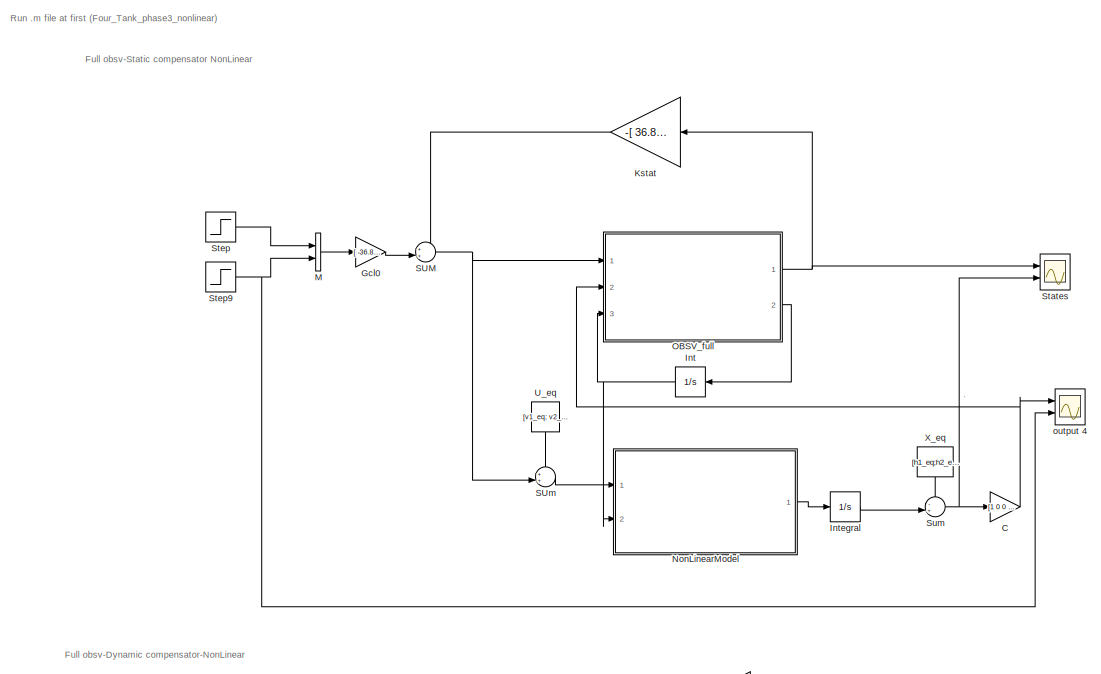
[diagram: root canvas - part 1/3, top right region]
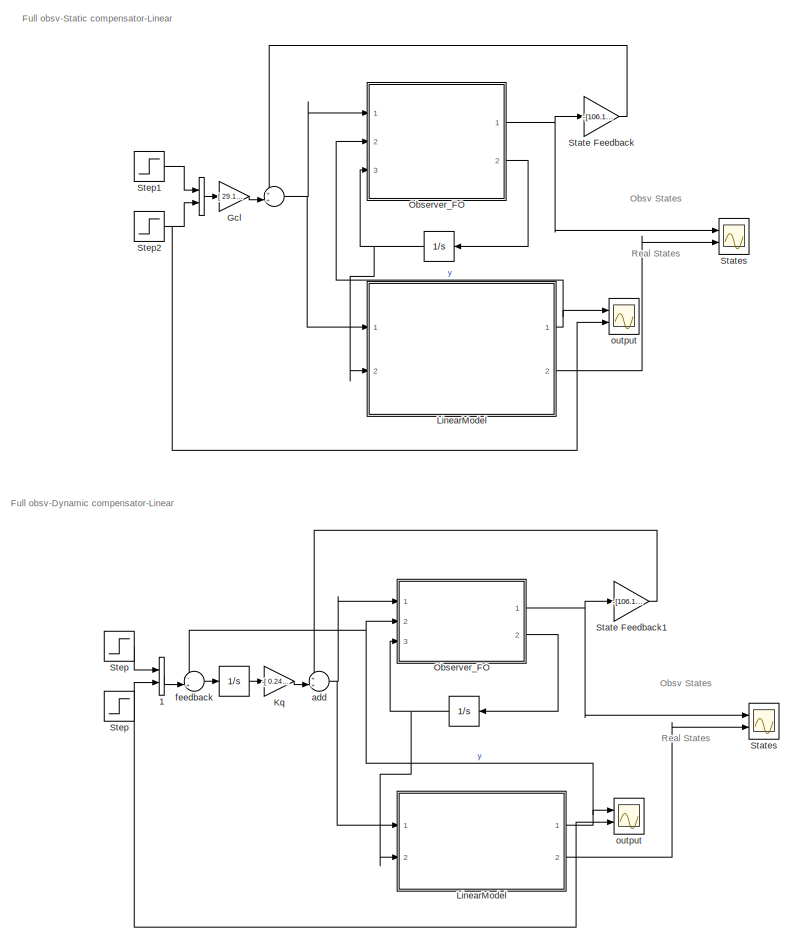
[diagram: root canvas - part 2/3, left side, full height]
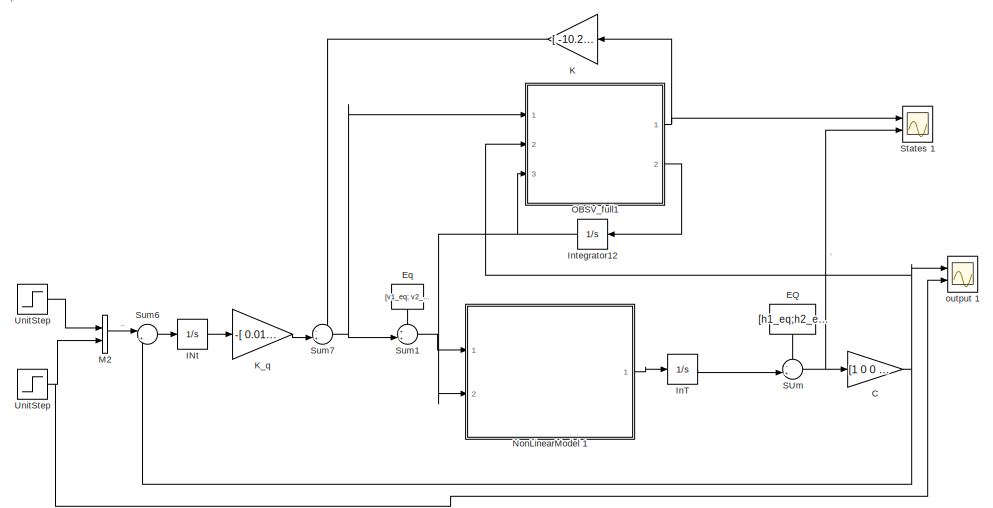
[diagram: root canvas - part 3/3, bottom right region]
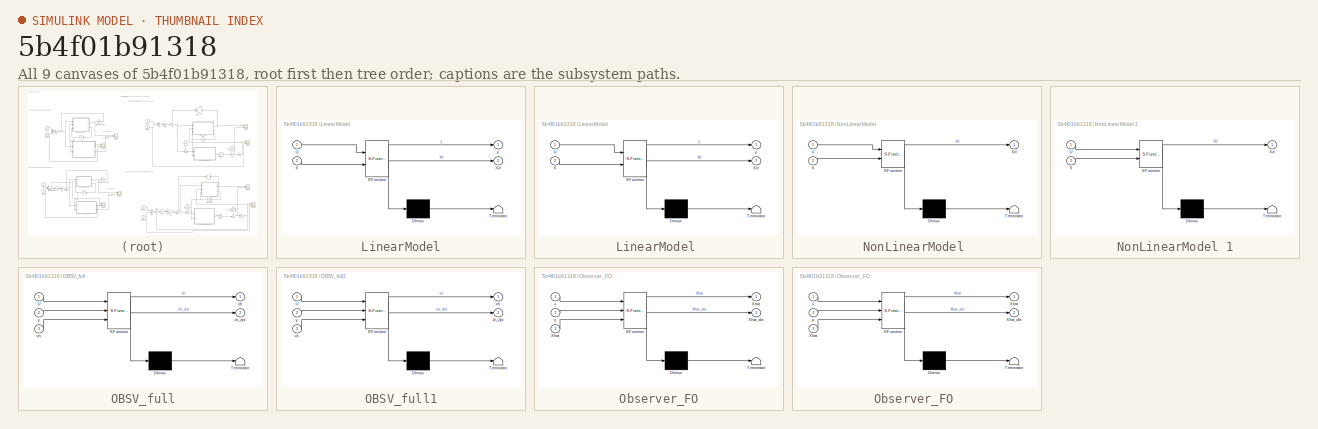
[diagram: thumbnail index - all 9 canvases of the model, root first then tree order]
MODEL slx_5b4f01b91318
KIND model
CONFIG AbsTol = auto
CONFIG EnableMultiTasking = off
CONFIG FixedStep = auto
CONFIG MaxStep = auto
CONFIG MinStep = auto
CONFIG RelTol = 1e-3
CONFIG SampleTimeConstraint = Unconstrained
CONFIG Solver = VariableStepAuto
CONFIG SolverName = VariableStepAuto
CONFIG StartTime = 0.0
CONFIG StopTime = 1500
BLOCK [Integrator]   
  InitialCondition = [0;0;0;0;0;0]
  NameLocation = top
  Ports = [1, 1]
BLOCK [Concatenate]    
  Ports = [2, 1]
BLOCK [Sum]      
  Inputs = ++|
  Ports = [2, 1]
BLOCK [Integrator]            
  Ports = [1, 1]
BLOCK [Integrator]                       
  InitialCondition = [0;0;0;0;0;0]
  NameLocation = top
  Ports = [1, 1]
BLOCK [Concatenate]    1
  Ports = [2, 1]
BLOCK [Gain]  C 
  Gain = [1 0 0 0;\n   0 1 0 0]
  Multiplication = Matrix(K*u)
BLOCK [Scope]  States 
  Floating = off
  NumInputPorts = 2
  Ports = [2]
  ScopeSpecificationString = Simulink.scopes.TimeScopeBlockCfg('CurrentConfiguration', extmgr.ConfigurationSet(extmgr.Configuration('Core','General UI',true,'FigureColor',[1 1 1]),extmgr.Configuration('Core','Source UI',true),extmgr.Configuration('Sources','WiredSimulink',true,'DataLoggingVariableName','ScopeData9','DataLoggingSaveFormat','StructureWithTime','DataLoggingDecimation','1','DataLoggingDecimateData',true),extmgr.C...<+4542ch>
BLOCK [Scope]  States 1
  Floating = off
  NumInputPorts = 2
  Ports = [2]
  ScopeSpecificationString = Simulink.scopes.TimeScopeBlockCfg('CurrentConfiguration', extmgr.ConfigurationSet(extmgr.Configuration('Core','General UI',true,'FigureColor',[1 1 1]),extmgr.Configuration('Core','Source UI',true),extmgr.Configuration('Sources','WiredSimulink',true,'DataLoggingVariableName','ScopeData7','DataLoggingSaveFormat','StructureWithTime','DataLoggingDecimation','1','DataLoggingDecimateData',true),extmgr.C...<+4518ch>
BLOCK [Step]  Step
  SampleTime = 0
BLOCK [Sum]  Sum
  Inputs = -+|
  Ports = [2, 1]
BLOCK [Sum]  add
  Inputs = ++|
  Ports = [2, 1]
BLOCK [Sum]  feedback
  Inputs = -+|
  Ports = [2, 1]
BLOCK [Scope]  output 
  Floating = off
  NumInputPorts = 2
  Ports = [2]
  ScopeSpecificationString = Simulink.scopes.TimeScopeBlockCfg('CurrentConfiguration', extmgr.ConfigurationSet(extmgr.Configuration('Core','General UI',true,'FigureColor',[1 1 1]),extmgr.Configuration('Core','Source UI',true),extmgr.Configuration('Sources','WiredSimulink',true,'DataLoggingSaveFormat','StructureWithTime','DataLoggingDecimation','1','DataLoggingDecimateData',true,'DataLoggingVariableName','ScopeData3'),extmgr.C...<+3208ch>
BLOCK [Gain] C 
  Gain = [1 0 0 0;\n   0 1 0 0]
  Multiplication = Matrix(K*u)
BLOCK [Constant] EQ
  NameLocation = left
  Value = [h1_eq;h2_eq;h3_eq;h4_eq]
BLOCK [Constant] Eq
  NameLocation = left
  Value = [v1_eq; v2_eq]
BLOCK [Gain] Gcl
  Gain = [  29.1,  231.0; 363.0, -162.0]
  Multiplication = Matrix(K*u)
BLOCK [Gain] Gcl0
  Gain = [ -36.89, 193.5; 56.82,  28.4]
  Multiplication = Matrix(K*u)
BLOCK [Integrator] INt
  Ports = [1, 1]
BLOCK [Integrator] InT
  InitialCondition = [h1_eq; h2_eq; h3_eq; h4_eq]
  Ports = [1, 1]
BLOCK [Integrator] Int
  InitialCondition = [0;0;0;0]
  NameLocation = top
  Ports = [1, 1]
BLOCK [Integrator] Integral
  InitialCondition = [h1_eq; h2_eq; h3_eq; h4_eq]
  Ports = [1, 1]
BLOCK [Integrator] Integrator12
  InitialCondition = [0;0;0;0]
  NameLocation = top
  Ports = [1, 1]
BLOCK [Gain] K
  Gain = [ -10.2, 36.3, -16.5,  24.5; 41.0, -4.6,  24.7, -13.1]
  Multiplication = Matrix(K*u)
BLOCK [Gain] K_q 
  Gain = -[ 0.0157, -0.888; -0.994, -0.123]
  Multiplication = Matrix(K*u)
BLOCK [Gain] Kq
  Gain = -[ 0.248, -0.644; -1.44,  0.283]
  Multiplication = Matrix(K*u)
BLOCK [Gain] Kstat
  Gain = -[ 36.82, 127.2, -58.99, 57.97; 31.33, 41.91,  23.64, -4.53]
  Multiplication = Matrix(K*u)
BLOCK [SubSystem] LinearModel
  ErrorFcn = Stateflow.Translate.translate
  PermitHierarchicalResolution = ExplicitOnly
  Ports = [2, 2]
  RequestExecContextInheritance = off
  SFBlockType = MATLAB Function
  TreatAsAtomicUnit = on
BLOCK [SubSystem] LinearModel 
  ErrorFcn = Stateflow.Translate.translate
  PermitHierarchicalResolution = ExplicitOnly
  Ports = [2, 2]
  RequestExecContextInheritance = off
  SFBlockType = MATLAB Function
  TreatAsAtomicUnit = on
BLOCK [Demux] LinearModel / Demux 
  Outputs = 1
  Ports = [1, 1]
BLOCK [S-Function] LinearModel / SFunction 
  EnableBusSupport = on
  FunctionName = sf_sfun
  PortCounts = [2 3]
  Ports = [2, 3]
  SFcnIsStateOwnerBlock = off
  SFunctionDeploymentMode = off
  Tag = Stateflow S-Function 2
BLOCK [Terminator] LinearModel / Terminator 
BLOCK [Inport] LinearModel /U
BLOCK [Inport] LinearModel /X
  Port = 2
BLOCK [Outport] LinearModel /Xd
  Port = 2
BLOCK [Outport] LinearModel /y
BLOCK [Demux] LinearModel/ Demux 
  Outputs = 1
  Ports = [1, 1]
BLOCK [S-Function] LinearModel/ SFunction 
  EnableBusSupport = on
  FunctionName = sf_sfun
  PortCounts = [2 3]
  Ports = [2, 3]
  SFcnIsStateOwnerBlock = off
  SFunctionDeploymentMode = off
  Tag = Stateflow S-Function 3
BLOCK [Terminator] LinearModel/ Terminator 
BLOCK [Inport] LinearModel/U
BLOCK [Inport] LinearModel/X
  Port = 2
BLOCK [Outport] LinearModel/Xd
  Port = 2
BLOCK [Outport] LinearModel/y
BLOCK [Concatenate] M
  Ports = [2, 1]
BLOCK [Concatenate] M2
  Ports = [2, 1]
BLOCK [SubSystem] NonLinearModel 
  ErrorFcn = Stateflow.Translate.translate
  PermitHierarchicalResolution = ExplicitOnly
  Ports = [2, 1]
  RequestExecContextInheritance = off
  SFBlockType = MATLAB Function
  TreatAsAtomicUnit = on
BLOCK [Demux] NonLinearModel / Demux 
  Outputs = 1
  Ports = [1, 1]
BLOCK [S-Function] NonLinearModel / SFunction 
  EnableBusSupport = on
  FunctionName = sf_sfun
  PortCounts = [2 2]
  Ports = [2, 2]
  SFcnIsStateOwnerBlock = off
  SFunctionDeploymentMode = off
  Tag = Stateflow S-Function 11
BLOCK [Terminator] NonLinearModel / Terminator 
BLOCK [Inport] NonLinearModel /U
BLOCK [Inport] NonLinearModel /X
  Port = 2
BLOCK [Outport] NonLinearModel /Xd
BLOCK [SubSystem] NonLinearModel 1
  ErrorFcn = Stateflow.Translate.translate
  PermitHierarchicalResolution = ExplicitOnly
  Ports = [2, 1]
  RequestExecContextInheritance = off
  SFBlockType = MATLAB Function
  TreatAsAtomicUnit = on
BLOCK [Demux] NonLinearModel 1/ Demux 
  Outputs = 1
  Ports = [1, 1]
BLOCK [S-Function] NonLinearModel 1/ SFunction 
  EnableBusSupport = on
  FunctionName = sf_sfun
  PortCounts = [2 2]
  Ports = [2, 2]
  SFcnIsStateOwnerBlock = off
  SFunctionDeploymentMode = off
  Tag = Stateflow S-Function 6
BLOCK [Terminator] NonLinearModel 1/ Terminator 
BLOCK [Inport] NonLinearModel 1/U
BLOCK [Inport] NonLinearModel 1/X
  Port = 2
BLOCK [Outport] NonLinearModel 1/Xd
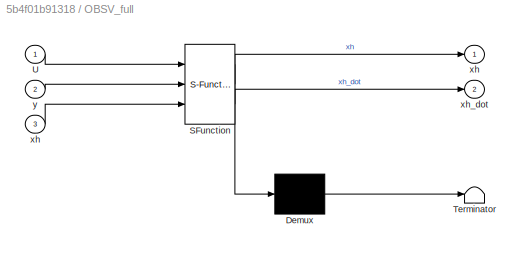
BLOCK [SubSystem] OBSV_full
  ErrorFcn = Stateflow.Translate.translate
  PermitHierarchicalResolution = ExplicitOnly
  Ports = [3, 2]
  RequestExecContextInheritance = off
  SFBlockType = MATLAB Function
  TreatAsAtomicUnit = on
BLOCK [Demux] OBSV_full/ Demux 
  Outputs = 1
  Ports = [1, 1]
BLOCK [S-Function] OBSV_full/ SFunction 
  EnableBusSupport = on
  FunctionName = sf_sfun
  PortCounts = [3 3]
  Ports = [3, 3]
  SFcnIsStateOwnerBlock = off
  SFunctionDeploymentMode = off
  Tag = Stateflow S-Function 12
BLOCK [Terminator] OBSV_full/ Terminator 
BLOCK [Inport] OBSV_full/U
BLOCK [Outport] OBSV_full/xh
BLOCK [Inport] OBSV_full/xh 
  Port = 3
BLOCK [Outport] OBSV_full/xh_dot
  Port = 2
BLOCK [Inport] OBSV_full/y
  Port = 2
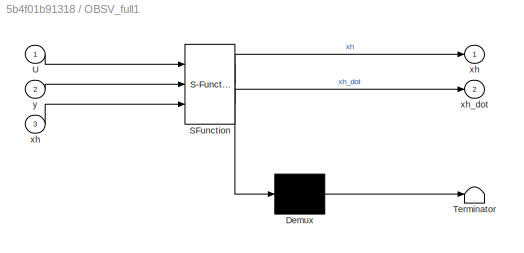
BLOCK [SubSystem] OBSV_full1
  ErrorFcn = Stateflow.Translate.translate
  PermitHierarchicalResolution = ExplicitOnly
  Ports = [3, 2]
  RequestExecContextInheritance = off
  SFBlockType = MATLAB Function
  TreatAsAtomicUnit = on
BLOCK [Demux] OBSV_full1/ Demux 
  Outputs = 1
  Ports = [1, 1]
BLOCK [S-Function] OBSV_full1/ SFunction 
  EnableBusSupport = on
  FunctionName = sf_sfun
  PortCounts = [3 3]
  Ports = [3, 3]
  SFcnIsStateOwnerBlock = off
  SFunctionDeploymentMode = off
  Tag = Stateflow S-Function 7
BLOCK [Terminator] OBSV_full1/ Terminator 
BLOCK [Inport] OBSV_full1/U
BLOCK [Outport] OBSV_full1/xh
BLOCK [Inport] OBSV_full1/xh 
  Port = 3
BLOCK [Outport] OBSV_full1/xh_dot
  Port = 2
BLOCK [Inport] OBSV_full1/y
  Port = 2
BLOCK [SubSystem] Observer_FO
  ErrorFcn = Stateflow.Translate.translate
  PermitHierarchicalResolution = ExplicitOnly
  Ports = [3, 2]
  RequestExecContextInheritance = off
  SFBlockType = MATLAB Function
  TreatAsAtomicUnit = on
BLOCK [SubSystem] Observer_FO 
  ErrorFcn = Stateflow.Translate.translate
  PermitHierarchicalResolution = ExplicitOnly
  Ports = [3, 2]
  RequestExecContextInheritance = off
  SFBlockType = MATLAB Function
  TreatAsAtomicUnit = on
BLOCK [Demux] Observer_FO / Demux 
  Outputs = 1
  Ports = [1, 1]
BLOCK [S-Function] Observer_FO / SFunction 
  EnableBusSupport = on
  FunctionName = sf_sfun
  PortCounts = [3 3]
  Ports = [3, 3]
  SFcnIsStateOwnerBlock = off
  SFunctionDeploymentMode = off
  Tag = Stateflow S-Function 4
BLOCK [Terminator] Observer_FO / Terminator 
BLOCK [Outport] Observer_FO /Xhat
BLOCK [Inport] Observer_FO /Xhat 
  Port = 3
BLOCK [Outport] Observer_FO /Xhat_dot
  Port = 2
BLOCK [Inport] Observer_FO /u
BLOCK [Inport] Observer_FO /y
  Port = 2
BLOCK [Demux] Observer_FO/ Demux 
  Outputs = 1
  Ports = [1, 1]
BLOCK [S-Function] Observer_FO/ SFunction 
  EnableBusSupport = on
  FunctionName = sf_sfun
  PortCounts = [3 3]
  Ports = [3, 3]
  SFcnIsStateOwnerBlock = off
  SFunctionDeploymentMode = off
  Tag = Stateflow S-Function 1
BLOCK [Terminator] Observer_FO/ Terminator 
BLOCK [Outport] Observer_FO/Xhat
BLOCK [Inport] Observer_FO/Xhat 
  Port = 3
BLOCK [Outport] Observer_FO/Xhat_dot
  Port = 2
BLOCK [Inport] Observer_FO/u
BLOCK [Inport] Observer_FO/y
  Port = 2
BLOCK [Sum] SUM
  Inputs = ++|
  Ports = [2, 1]
BLOCK [Sum] SUm
  Inputs = ++|
  Ports = [2, 1]
BLOCK [Sum] SUm 
  Inputs = -+|
  Ports = [2, 1]
BLOCK [Gain] State Feedback
  Gain = -[106.15 -61.299 0.111 0.986 160.72 57.96; 169.55 189.92 1.35 0.106 -43.79 -62.97]
  Multiplication = Matrix(K*u)
BLOCK [Gain] State Feedback1
  Gain = -[106.15 -61.299 0.111 0.986 160.72 57.96; 169.55 189.92 1.35 0.106 -43.79 -62.97]
  Multiplication = Matrix(K*u)
BLOCK [Scope] States
  Floating = off
  NumInputPorts = 2
  Ports = [2]
  ScopeSpecificationString = Simulink.scopes.TimeScopeBlockCfg('CurrentConfiguration', extmgr.ConfigurationSet(extmgr.Configuration('Core','General UI',true,'FigureColor',[1 1 1]),extmgr.Configuration('Core','Source UI',true),extmgr.Configuration('Sources','WiredSimulink',true,'DataLoggingVariableName','ScopeData1','DataLoggingSaveFormat','StructureWithTime','DataLoggingDecimation','1','DataLoggingDecimateData',true),extmgr.C...<+4694ch>
BLOCK [Scope] States 
  Floating = off
  NumInputPorts = 2
  Ports = [2]
  ScopeSpecificationString = Simulink.scopes.TimeScopeBlockCfg('CurrentConfiguration', extmgr.ConfigurationSet(extmgr.Configuration('Core','General UI',true,'FigureColor',[1 1 1]),extmgr.Configuration('Core','Source UI',true),extmgr.Configuration('Sources','WiredSimulink',true,'DataLoggingVariableName','ScopeData4','DataLoggingSaveFormat','StructureWithTime','DataLoggingDecimation','1','DataLoggingDecimateData',true),extmgr.C...<+4677ch>
BLOCK [Step] Step
  SampleTime = 0
BLOCK [Step] Step 
  SampleTime = 0
BLOCK [Step] Step1
  SampleTime = 0
BLOCK [Step] Step2
  SampleTime = 0
BLOCK [Step] Step9
  SampleTime = 0
BLOCK [Sum] Sum1
  Inputs = ++|
  Ports = [2, 1]
BLOCK [Sum] Sum6
  Inputs = |+-
  Ports = [2, 1]
BLOCK [Sum] Sum7
  Inputs = -+|
  Ports = [2, 1]
BLOCK [Constant] U_eq
  NameLocation = left
  Value = [v1_eq; v2_eq]
BLOCK [Step] UnitStep
  SampleTime = 0
BLOCK [Step] UnitStep 
  SampleTime = 0
BLOCK [Constant] X_eq
  NameLocation = left
  Value = [h1_eq;h2_eq;h3_eq;h4_eq]
BLOCK [Scope] output 
  Floating = off
  NumInputPorts = 2
  Ports = [2]
  ScopeSpecificationString = Simulink.scopes.TimeScopeBlockCfg('CurrentConfiguration', extmgr.ConfigurationSet(extmgr.Configuration('Core','General UI',true,'FigureColor',[1 1 1]),extmgr.Configuration('Core','Source UI',true),extmgr.Configuration('Sources','WiredSimulink',true,'DataLoggingSaveFormat','StructureWithTime','DataLoggingDecimation','1','DataLoggingDecimateData',true,'DataLoggingVariableName','ScopeData2'),extmgr.C...<+3199ch>
BLOCK [Scope] output 1
  Floating = off
  NumInputPorts = 2
  Ports = [2]
  ScopeSpecificationString = Simulink.scopes.TimeScopeBlockCfg('CurrentConfiguration', extmgr.ConfigurationSet(extmgr.Configuration('Core','General UI',true,'FigureColor',[1 1 1]),extmgr.Configuration('Core','Source UI',true),extmgr.Configuration('Sources','WiredSimulink',true,'DataLoggingSaveFormat','StructureWithTime','DataLoggingDecimation','1','DataLoggingDecimateData',true,'DataLoggingVariableName','ScopeData5'),extmgr.C...<+3220ch>
BLOCK [Scope] output 4
  Floating = off
  NumInputPorts = 2
  Ports = [2]
  ScopeSpecificationString = Simulink.scopes.TimeScopeBlockCfg('CurrentConfiguration', extmgr.ConfigurationSet(extmgr.Configuration('Core','General UI',true,'FigureColor',[1 1 1]),extmgr.Configuration('Core','Source UI',true),extmgr.Configuration('Sources','WiredSimulink',true,'DataLoggingSaveFormat','StructureWithTime','DataLoggingDecimation','1','DataLoggingDecimateData',true,'DataLoggingVariableName','ScopeData8'),extmgr.C...<+3204ch>
ANNOTATION (root): Run .m file at first (Four_Tank_phase3_nonlinear)
ANNOTATION (root): Full obsv-Dynamic compensator-Linear
ANNOTATION (root): Full obsv-Dynamic compensator-NonLinear
ANNOTATION (root): Full obsv-Static compensator NonLinear
ANNOTATION (root): Full obsv-Static compensator-Linear
ANNOTATION (root): Obsv States
ANNOTATION (root): Real States
NET                       :1 -> LinearModel :2, Observer_FO :3
LINE            :1 -> Kq:1
NET      :1 -> LinearModel:1, Observer_FO:1
LINE    1:1 ->  feedback:2
LINE    :1 -> Gcl:1
NET   :1 -> LinearModel:2, Observer_FO:3
NET  C :1 -> OBSV_full1:2, Sum6:2, output 1:1
NET  Step:1 ->    1:2,  output :2
NET  Sum:1 ->  States :2, C :1
NET  add:1 -> LinearModel :1, Observer_FO :1
LINE  feedback:1 ->            :1
NET C :1 -> OBSV_full:2, output 4:1
LINE EQ:1 -> SUm :1
LINE Eq:1 -> Sum1:1
LINE Gcl0:1 -> SUM:2
LINE Gcl:1 ->      :2
LINE INt:1 -> K_q :1
LINE InT:1 -> SUm :2
NET Int:1 -> NonLinearModel :2, OBSV_full:3
LINE Integral:1 ->  Sum:2
NET Integrator12:1 -> NonLinearModel 1:2, OBSV_full1:3
LINE K:1 -> Sum7:1
LINE K_q :1 -> Sum7:2
LINE Kq:1 ->  add:2
LINE Kstat:1 -> SUM:1
NET LinearModel :1 ->  feedback:1,  output :1, Observer_FO :2
LINE LinearModel :2 -> States :2
NET LinearModel:1 -> Observer_FO:2, output :1
LINE LinearModel:2 -> States:2
LINE M2:1 -> Sum6:1
LINE M:1 -> Gcl0:1
LINE NonLinearModel 1:1 -> InT:1
LINE NonLinearModel :1 -> Integral:1
NET OBSV_full1:1 ->  States 1:1, K:1
LINE OBSV_full1:2 -> Integrator12:1
NET OBSV_full:1 ->  States :1, Kstat:1
LINE OBSV_full:2 -> Int:1
NET Observer_FO :1 -> State Feedback1:1, States :1
LINE Observer_FO :2 ->                       :1
NET Observer_FO:1 -> State Feedback:1, States:1
LINE Observer_FO:2 ->   :1
NET SUM:1 -> OBSV_full:1, SUm:2
NET SUm :1 ->  C :1,  States 1:2
LINE SUm:1 -> NonLinearModel :1
LINE State Feedback1:1 ->  add:1
LINE State Feedback:1 ->      :1
LINE Step :1 ->    1:1
LINE Step1:1 ->    :1
NET Step2:1 ->    :2, output :2
NET Step9:1 -> M:2, output 4:2
LINE Step:1 -> M:1
LINE Sum1:1 -> NonLinearModel 1:1
LINE Sum6:1 -> INt:1
NET Sum7:1 -> OBSV_full1:1, Sum1:2
LINE U_eq:1 -> SUm:1
NET UnitStep :1 -> M2:2, output 1:2
LINE UnitStep:1 -> M2:1
LINE X_eq:1 ->  Sum:1
note: NET lines group one-source signal fan-out (src -> all destinations, sorted); 1:1 wires keep LINE
CHART Observer_FO states=1 transitions=1
  STATE_LABEL 'eML_blk_kernel()'
  STATE_LABEL 'SCRIPT:\nfunction [Xhat, Xhat_dot]= observer_FO(u, y, Xhat)\n\nA = [ -0.0189,  0.029,      0, 0.00306,       0,       0;\n       0, -0.029, 0.0065,       0,       0,       0;\n       0,      0, -0.476,       0,       0,       0;\n       0,      0,      0,    -0.5,       0,       0;\n       0,      0, 0.0035,       0, -0.0191,  0.0349;\n       0,      0,      0, 0.00714,       0, -0.0349];\n\nB =[0,     0;\n ...<+287ch>'
CHART LinearModel  states=1 transitions=1
  STATE_LABEL 'eML_blk_kernel()'
  STATE_LABEL 'SCRIPT:\nfunction [y, Xd]  = linear_plant(U, X)\n\nA = [ -0.0189,  0.029,      0, 0.00306,       0,       0;\n       0, -0.029, 0.0065,       0,       0,       0;\n       0,      0, -0.476,       0,       0,       0;\n       0,      0,      0,    -0.5,       0,       0;\n       0,      0, 0.0035,       0, -0.0191,  0.0349;\n       0,      0,      0, 0.00714,       0, -0.0349];\n\nB =[0,     0;\n   0,     0;\n...<+136ch>'
CHART LinearModel states=1 transitions=1
  STATE_LABEL 'eML_blk_kernel()'
  STATE_LABEL 'SCRIPT:\nfunction [y, Xd]  = linear_plant(U, X)\n\nA = [ -0.0189,  0.029,      0, 0.00306,       0,       0;\n       0, -0.029, 0.0065,       0,       0,       0;\n       0,      0, -0.476,       0,       0,       0;\n       0,      0,      0,    -0.5,       0,       0;\n       0,      0, 0.0035,       0, -0.0191,  0.0349;\n       0,      0,      0, 0.00714,       0, -0.0349];\n\nB =[0,     0;\n   0,     0;\n...<+136ch>'
CHART Observer_FO  states=1 transitions=1
  STATE_LABEL 'eML_blk_kernel()'
  STATE_LABEL 'SCRIPT:\nfunction [Xhat, Xhat_dot]= observer_FO(u, y, Xhat)\n\nA = [ -0.0189,  0.029,      0, 0.00306,       0,       0;\n       0, -0.029, 0.0065,       0,       0,       0;\n       0,      0, -0.476,       0,       0,       0;\n       0,      0,      0,    -0.5,       0,       0;\n       0,      0, 0.0035,       0, -0.0191,  0.0349;\n       0,      0,      0, 0.00714,       0, -0.0349];\n\nB =[0,     0;\n ...<+287ch>'
CHART NonLinearModel 1 states=1 transitions=1
  STATE_LABEL 'eML_blk_kernel()'
  STATE_LABEL 'SCRIPT:\nfunction Xd = NonlinearModel(U, X)\n\nA = [730 730 730 730];\na = [2.10 2.14 2.2 2.3];\ng = 981;\ny = [0.3 0.35];\nk = [7.45 7.30];\n\nv1 = U(1);\nv2 = U(2);\n\nh1 = X(1);\nh2 = X(2);\nh3 = X(3);\nh4 = X(4);\n\nh1_d = -a(1)/A(1)*sqrt(2*g*h1)+a(3)/A(1)*sqrt(2*g*h3)+y(1)*k(1)/A(1)*v1;\nh2_d = -a(2)/A(2)*sqrt(2*g*h2)+a(4)/A(2)*sqrt(2*g*h4)+y(2)*k(2)/A(2)*v2;\nh3_d = -a(3)/A(3)*sqrt(2*g*h3)+(1 - y(2))*k(2)/A(3)...<+89ch>'
CHART OBSV_full1 states=1 transitions=1
  STATE_LABEL 'eML_blk_kernel()'
  STATE_LABEL 'SCRIPT:\nfunction [xh, xh_dot] = Obsv_Full(U, y ,xh)\n\nA = [ -0.01887,        0,  0.02899,        0;\n         0, -0.01906,        0,  0.03489;\n        0,        0, -0.02899,        0;\n        0,        0,        0, -0.03489];\n\n\n    B = [ 0.003062,      0;\n        0, 0.0035;\n        0, 0.0065;\n 0.007144,      0];\n \nC = [1 0 0 0;\n   0 1 0 0];\n\nL = [ 0.8521,     0;\n      0, 0.446;\n  6.027,     0;\n     ...<+46ch>'
CHART NonLinearModel  states=1 transitions=1
  STATE_LABEL 'eML_blk_kernel()'
  STATE_LABEL 'SCRIPT:\nfunction Xd = NonlinearModel(U, X)\n\nA = [730 730 730 730];\na = [2.10 2.14 2.2 2.3];\ng = 981;\ny = [0.3 0.35];\nk = [7.45 7.30];\n\nv1 = U(1);\nv2 = U(2);\n\nh1 = X(1);\nh2 = X(2);\nh3 = X(3);\nh4 = X(4);\n\nh1_d = -a(1)/A(1)*sqrt(2*g*h1)+a(3)/A(1)*sqrt(2*g*h3)+y(1)*k(1)/A(1)*v1;\nh2_d = -a(2)/A(2)*sqrt(2*g*h2)+a(4)/A(2)*sqrt(2*g*h4)+y(2)*k(2)/A(2)*v2;\nh3_d = -a(3)/A(3)*sqrt(2*g*h3)+(1 - y(2))*k(2)/A(3)...<+89ch>'
CHART OBSV_full states=1 transitions=1
  STATE_LABEL 'eML_blk_kernel()'
  STATE_LABEL 'SCRIPT:\nfunction [xh, xh_dot] = Obsv_Full(U, y ,xh)\n\nA = [ -0.01887,        0,  0.02899,        0;\n         0, -0.01906,        0,  0.03489;\n        0,        0, -0.02899,        0;\n        0,        0,        0, -0.03489];\n\n\n    B = [ 0.003062,      0;\n        0, 0.0035;\n        0, 0.0065;\n 0.007144,      0];\n \nC = [1 0 0 0;\n   0 1 0 0];\n\nL = [ 0.8521,     0;\n      0, 0.446;\n  6.027,     0;\n     ...<+46ch>'
CHART  states=0 transitions=0
CHART  states=0 transitions=0
CHART  states=0 transitions=0
CHART  states=0 transitions=0
CHART  states=0 transitions=0
CHART  states=0 transitions=0
CHART  states=0 transitions=0
CHART  states=0 transitions=0
